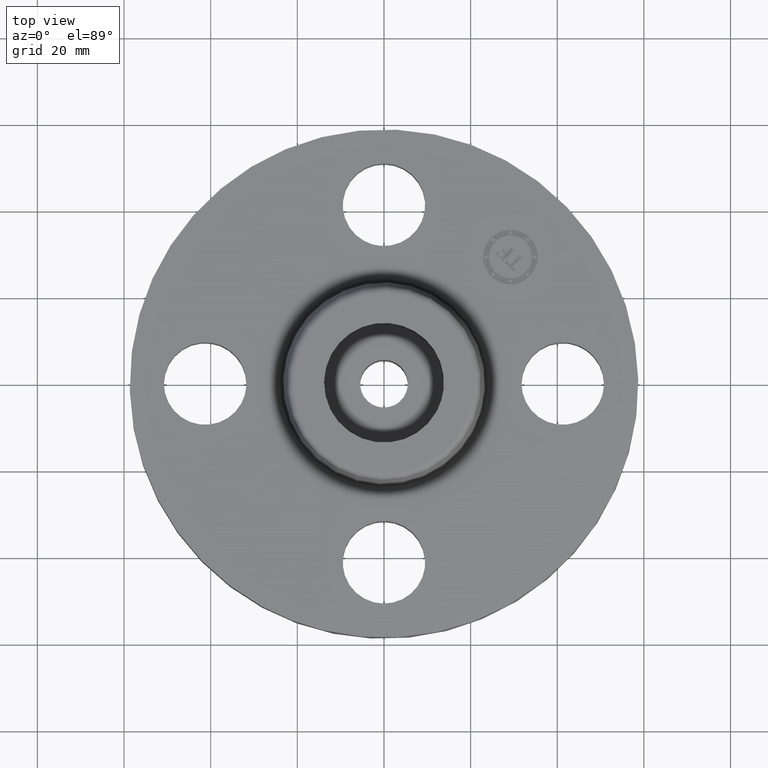
[diagram: clean part render]
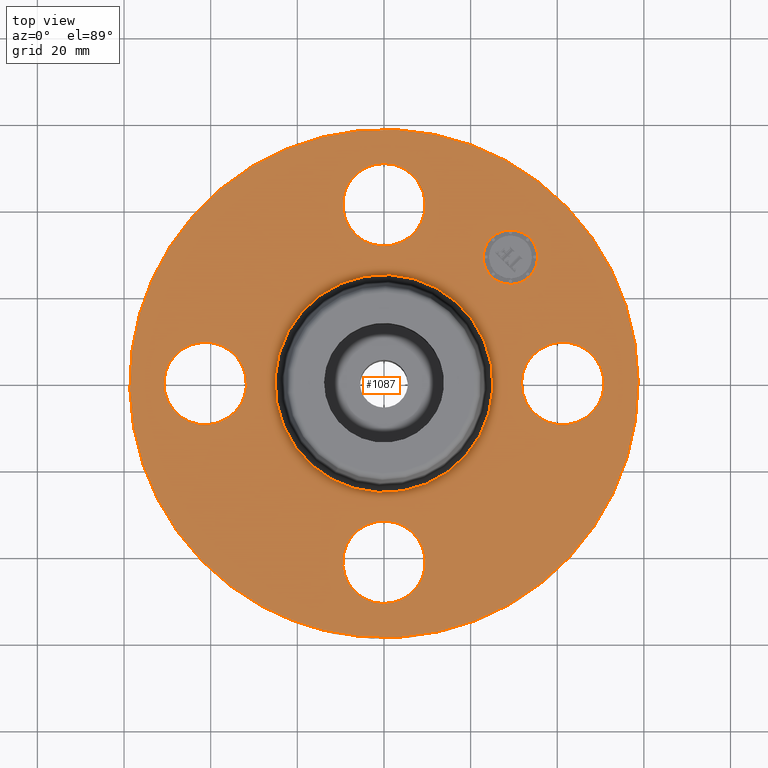
[diagram: same view with one face highlighted and labeled with its STEP entity id]
A machine part, top view. The second image highlights one B-rep face of the part: STEP entity #1087.
In plain terms, the highlighted planar face has unit normal (0, 0, -1).
Its self-contained STEP definition (entity closure, byte-faithful):
#615=AXIS2_PLACEMENT_3D('Circle Axis2P3D',#613,#614,$) ;
#653=AXIS2_PLACEMENT_3D('Circle Axis2P3D',#651,#652,$) ;
#684=AXIS2_PLACEMENT_3D('Circle Axis2P3D',#682,#683,$) ;
#765=AXIS2_PLACEMENT_3D('Circle Axis2P3D',#763,#764,$) ;
#839=AXIS2_PLACEMENT_3D('Circle Axis2P3D',#837,#838,$) ;
#913=AXIS2_PLACEMENT_3D('Circle Axis2P3D',#911,#912,$) ;
#987=AXIS2_PLACEMENT_3D('Circle Axis2P3D',#985,#986,$) ;
#1043=AXIS2_PLACEMENT_3D('Plane Axis2P3D',#1040,#1041,#1042) ;
#1071=AXIS2_PLACEMENT_3D('Circle Axis2P3D',#1069,#1070,$) ;
#1080=AXIS2_PLACEMENT_3D('Circle Axis2P3D',#1078,#1079,$) ;
#613=CARTESIAN_POINT('Axis2P3D Location',(0.,0.,0.620000000003)) ;
#617=CARTESIAN_POINT('Vertex',(0.474797153847,0.869110360421,0.620000000003)) ;
#619=CARTESIAN_POINT('Vertex',(-0.474797153847,-0.869110360421,0.620000000003)) ;
#651=CARTESIAN_POINT('Axis2P3D Location',(0.,0.,0.620000000003)) ;
#679=CARTESIAN_POINT('Vertex',(-1.10747299418,-2.02721571798,0.619999999973)) ;
#682=CARTESIAN_POINT('Axis2P3D Location',(0.,0.,0.619999999973)) ;
#686=CARTESIAN_POINT('Vertex',(1.10747299418,2.02721571798,0.619999999973)) ;
#714=CARTESIAN_POINT('Control Point',(1.10747299418,2.02721571797,0.619999999973)) ;
#715=CARTESIAN_POINT('Control Point',(1.42590729452,1.85325426685,0.619999999975)) ;
#716=CARTESIAN_POINT('Control Point',(1.71018434381,1.61676838705,0.619999999976)) ;
#717=CARTESIAN_POINT('Control Point',(1.94387991118,1.32665044307,0.619999999978)) ;
#718=CARTESIAN_POINT('Control Point',(2.28492391662,0.67041494059,0.619999999981)) ;
#719=CARTESIAN_POINT('Control Point',(2.35251083668,-0.066055056493,0.619999999983)) ;
#720=CARTESIAN_POINT('Control Point',(2.31261419157,-0.436447142444,0.619999999985)) ;
#721=CARTESIAN_POINT('Control Point',(2.08974014664,-1.14163024524,0.619999999988)) ;
#722=CARTESIAN_POINT('Control Point',(1.61676838706,-1.71018434381,0.619999999991)) ;
#723=CARTESIAN_POINT('Control Point',(1.32665044308,-1.94387991118,0.619999999992)) ;
#724=CARTESIAN_POINT('Control Point',(0.670414940591,-2.28492391662,0.619999999995)) ;
#725=CARTESIAN_POINT('Control Point',(-0.0660550564923,-2.35251083668,0.619999999998)) ;
#726=CARTESIAN_POINT('Control Point',(-0.436447142444,-2.31261419157,0.619999999999)) ;
#727=CARTESIAN_POINT('Control Point',(-0.78903869384,-2.2011771691,0.620000000001)) ;
#728=CARTESIAN_POINT('Control Point',(-1.10747299418,-2.02721571798,0.620000000002)) ;
#753=CARTESIAN_POINT('Vertex',(1.95409346071,-0.179784576986,0.620000000002)) ;
#760=CARTESIAN_POINT('Vertex',(1.2959065393,0.179784576977,0.619999999987)) ;
#763=CARTESIAN_POINT('Axis2P3D Location',(1.62500000001,0.,0.619999999987)) ;
#788=CARTESIAN_POINT('Control Point',(1.2959065393,0.179784576977,0.620000000002)) ;
#789=CARTESIAN_POINT('Control Point',(1.32414703461,0.231478456903,0.620000000001)) ;
#790=CARTESIAN_POINT('Control Point',(1.36253759951,0.27762732854,0.620000000001)) ;
#791=CARTESIAN_POINT('Control Point',(1.40963466834,0.315564920645,0.62)) ;
#792=CARTESIAN_POINT('Control Point',(1.51616640576,0.370929207243,0.619999999998)) ;
#793=CARTESIAN_POINT('Control Point',(1.63572322347,0.38190110985,0.619999999997)) ;
#794=CARTESIAN_POINT('Control Point',(1.69585180885,0.375424381748,0.619999999996)) ;
#795=CARTESIAN_POINT('Control Point',(1.81032958528,0.339243530298,0.619999999995)) ;
#796=CARTESIAN_POINT('Control Point',(1.90262732855,0.262462400496,0.619999999993)) ;
#797=CARTESIAN_POINT('Control Point',(1.94056492066,0.215365331668,0.619999999992)) ;
#798=CARTESIAN_POINT('Control Point',(1.99592920725,0.108833594252,0.619999999991)) ;
#799=CARTESIAN_POINT('Control Point',(2.00690110986,-0.0107232234562,0.61999999999)) ;
#800=CARTESIAN_POINT('Control Point',(2.00042438176,-0.0708518088378,0.619999999989)) ;
#801=CARTESIAN_POINT('Control Point',(1.98233395603,-0.128090697051,0.619999999988)) ;
#802=CARTESIAN_POINT('Control Point',(1.95409346072,-0.179784576977,0.619999999987)) ;
#827=CARTESIAN_POINT('Vertex',(0.179784576973,-1.29590653933,0.620000000002)) ;
#834=CARTESIAN_POINT('Vertex',(-0.179784576977,-1.95409346072,0.619999999987)) ;
#837=CARTESIAN_POINT('Axis2P3D Location',(-1.8023868212E-016,-1.62500000001,0.619999999987)) ;
#862=CARTESIAN_POINT('Control Point',(-0.179784576977,-1.95409346072,0.620000000002)) ;
#863=CARTESIAN_POINT('Control Point',(-0.231478456903,-1.92585296541,0.620000000001)) ;
#864=CARTESIAN_POINT('Control Point',(-0.27762732854,-1.88746240051,0.620000000001)) ;
#865=CARTESIAN_POINT('Control Point',(-0.315564920645,-1.84036533168,0.62)) ;
#866=CARTESIAN_POINT('Control Point',(-0.370929207243,-1.73383359426,0.619999999998)) ;
#867=CARTESIAN_POINT('Control Point',(-0.38190110985,-1.61427677655,0.619999999997)) ;
#868=CARTESIAN_POINT('Control Point',(-0.375424381748,-1.55414819117,0.619999999996)) ;
#869=CARTESIAN_POINT('Control Point',(-0.339243530298,-1.43967041474,0.619999999995)) ;
#870=CARTESIAN_POINT('Control Point',(-0.262462400496,-1.34737267147,0.619999999993)) ;
#871=CARTESIAN_POINT('Control Point',(-0.215365331668,-1.30943507936,0.619999999992)) ;
#872=CARTESIAN_POINT('Control Point',(-0.108833594252,-1.25407079277,0.619999999991)) ;
#873=CARTESIAN_POINT('Control Point',(0.0107232234562,-1.24309889016,0.61999999999)) ;
#874=CARTESIAN_POINT('Control Point',(0.0708518088378,-1.24957561826,0.619999999989)) ;
#875=CARTESIAN_POINT('Control Point',(0.128090697051,-1.26766604399,0.619999999988)) ;
#876=CARTESIAN_POINT('Control Point',(0.179784576977,-1.2959065393,0.619999999987)) ;
#901=CARTESIAN_POINT('Vertex',(-1.29590653932,-0.179784576986,0.620000000002)) ;
#908=CARTESIAN_POINT('Vertex',(-1.95409346072,0.179784576978,0.619999999987)) ;
#911=CARTESIAN_POINT('Axis2P3D Location',(-1.62500000001,-1.99005104862E-016,0.619999999987)) ;
#936=CARTESIAN_POINT('Control Point',(-1.95409346072,0.179784576978,0.620000000002)) ;
#937=CARTESIAN_POINT('Control Point',(-1.92585296541,0.231478456903,0.620000000001)) ;
#938=CARTESIAN_POINT('Control Point',(-1.88746240051,0.277627328541,0.620000000001)) ;
#939=CARTESIAN_POINT('Control Point',(-1.84036533168,0.315564920646,0.62)) ;
#940=CARTESIAN_POINT('Control Point',(-1.73383359426,0.370929207244,0.619999999998)) ;
#941=CARTESIAN_POINT('Control Point',(-1.61427677655,0.381901109851,0.619999999997)) ;
#942=CARTESIAN_POINT('Control Point',(-1.55414819117,0.375424381749,0.619999999996)) ;
#943=CARTESIAN_POINT('Control Point',(-1.43967041474,0.339243530299,0.619999999995)) ;
#944=CARTESIAN_POINT('Control Point',(-1.34737267147,0.262462400496,0.619999999993)) ;
#945=CARTESIAN_POINT('Control Point',(-1.30943507936,0.215365331668,0.619999999992)) ;
#946=CARTESIAN_POINT('Control Point',(-1.25407079277,0.108833594252,0.619999999991)) ;
#947=CARTESIAN_POINT('Control Point',(-1.24309889016,-0.0107232234563,0.61999999999)) ;
#948=CARTESIAN_POINT('Control Point',(-1.24957561826,-0.070851808838,0.619999999989)) ;
#949=CARTESIAN_POINT('Control Point',(-1.26766604399,-0.128090697052,0.619999999988)) ;
#950=CARTESIAN_POINT('Control Point',(-1.2959065393,-0.179784576977,0.619999999987)) ;
#975=CARTESIAN_POINT('Vertex',(-0.179784576973,1.2959065393,0.620000000002)) ;
#982=CARTESIAN_POINT('Vertex',(0.179784576977,1.95409346072,0.619999999987)) ;
#985=CARTESIAN_POINT('Axis2P3D Location',(-2.98507657293E-016,1.62500000001,0.619999999987)) ;
#1010=CARTESIAN_POINT('Control Point',(0.179784576977,1.95409346072,0.620000000002)) ;
#1011=CARTESIAN_POINT('Control Point',(0.231478456903,1.92585296541,0.620000000001)) ;
#1012=CARTESIAN_POINT('Control Point',(0.27762732854,1.88746240051,0.620000000001)) ;
#1013=CARTESIAN_POINT('Control Point',(0.315564920645,1.84036533168,0.62)) ;
#1014=CARTESIAN_POINT('Control Point',(0.370929207243,1.73383359426,0.619999999998)) ;
#1015=CARTESIAN_POINT('Control Point',(0.38190110985,1.61427677655,0.619999999997)) ;
#1016=CARTESIAN_POINT('Control Point',(0.375424381748,1.55414819117,0.619999999996)) ;
#1017=CARTESIAN_POINT('Control Point',(0.339243530298,1.43967041474,0.619999999995)) ;
#1018=CARTESIAN_POINT('Control Point',(0.262462400496,1.34737267147,0.619999999993)) ;
#1019=CARTESIAN_POINT('Control Point',(0.215365331668,1.30943507936,0.619999999992)) ;
#1020=CARTESIAN_POINT('Control Point',(0.108833594252,1.25407079277,0.619999999991)) ;
#1021=CARTESIAN_POINT('Control Point',(-0.0107232234562,1.24309889016,0.61999999999)) ;
#1022=CARTESIAN_POINT('Control Point',(-0.0708518088378,1.24957561826,0.619999999989)) ;
#1023=CARTESIAN_POINT('Control Point',(-0.128090697051,1.26766604399,0.619999999988)) ;
#1024=CARTESIAN_POINT('Control Point',(-0.179784576977,1.2959065393,0.619999999987)) ;
#1040=CARTESIAN_POINT('Axis2P3D Location',(0.,2.31000000001,0.620000000002)) ;
#1069=CARTESIAN_POINT('Axis2P3D Location',(1.14904851942,1.14904851941,0.620000000002)) ;
#1073=CARTESIAN_POINT('Vertex',(0.974039591072,1.32405744776,0.620000000002)) ;
#1075=CARTESIAN_POINT('Vertex',(1.32405744778,0.974039591059,0.620000000002)) ;
#1078=CARTESIAN_POINT('Axis2P3D Location',(1.14904851942,1.14904851941,0.620000000002)) ;
#614=DIRECTION('Axis2P3D Direction',(-0.,0.,-0.0393700787402)) ;
#652=DIRECTION('Axis2P3D Direction',(-0.,0.,-0.0393700787402)) ;
#683=DIRECTION('Axis2P3D Direction',(0.,0.,-0.0393700787402)) ;
#764=DIRECTION('Axis2P3D Direction',(0.,-0.,-0.0393700787402)) ;
#838=DIRECTION('Axis2P3D Direction',(0.,0.,-0.0393700787402)) ;
#912=DIRECTION('Axis2P3D Direction',(0.,-0.,-0.0393700787402)) ;
#986=DIRECTION('Axis2P3D Direction',(-0.,0.,-0.0393700787402)) ;
#1041=DIRECTION('Axis2P3D Direction',(0.,0.,-0.0393700787402)) ;
#1042=DIRECTION('Axis2P3D XDirection',(0.0393700787402,0.,0.)) ;
#1070=DIRECTION('Axis2P3D Direction',(0.,0.,-0.0393700787402)) ;
#1079=DIRECTION('Axis2P3D Direction',(0.,0.,-0.0393700787402)) ;
#1046=ORIENTED_EDGE('',*,*,#729,.F.) ;
#1047=ORIENTED_EDGE('',*,*,#688,.F.) ;
#1050=ORIENTED_EDGE('',*,*,#803,.T.) ;
#1051=ORIENTED_EDGE('',*,*,#767,.T.) ;
#1054=ORIENTED_EDGE('',*,*,#655,.T.) ;
#1055=ORIENTED_EDGE('',*,*,#621,.T.) ;
#1058=ORIENTED_EDGE('',*,*,#877,.T.) ;
#1059=ORIENTED_EDGE('',*,*,#841,.T.) ;
#1062=ORIENTED_EDGE('',*,*,#951,.T.) ;
#1063=ORIENTED_EDGE('',*,*,#915,.T.) ;
#1066=ORIENTED_EDGE('',*,*,#1025,.T.) ;
#1067=ORIENTED_EDGE('',*,*,#989,.T.) ;
#1084=ORIENTED_EDGE('',*,*,#1077,.T.) ;
#1085=ORIENTED_EDGE('',*,*,#1082,.T.) ;
#1052=FACE_BOUND('',#1049,.T.) ;
#1056=FACE_BOUND('',#1053,.T.) ;
#1060=FACE_BOUND('',#1057,.T.) ;
#1064=FACE_BOUND('',#1061,.T.) ;
#1068=FACE_BOUND('',#1065,.T.) ;
#1086=FACE_BOUND('',#1083,.T.) ;
#1087=ADVANCED_FACE('PartBody',(#1048,#1052,#1056,#1060,#1064,#1068,#1086),#1044,.F.) ;
#713=B_SPLINE_CURVE_WITH_KNOTS('',5,(#714,#715,#716,#717,#718,#719,#720,#721,#722,#723,#724,#725,#726,#727,#728),.UNSPECIFIED.,.F.,.U.,(6,3,3,3,6),(-92.1649036787,-46.0824518394,-7.1054273576E-015,46.0824518394,92.1649036787),.UNSPECIFIED.) ;
#787=B_SPLINE_CURVE_WITH_KNOTS('',5,(#788,#789,#790,#791,#792,#793,#794,#795,#796,#797,#798,#799,#800,#801,#802),.UNSPECIFIED.,.F.,.U.,(6,3,3,3,6),(-14.9618350128,-7.48091750638,0.,7.48091750638,14.9618350128),.UNSPECIFIED.) ;
#861=B_SPLINE_CURVE_WITH_KNOTS('',5,(#862,#863,#864,#865,#866,#867,#868,#869,#870,#871,#872,#873,#874,#875,#876),.UNSPECIFIED.,.F.,.U.,(6,3,3,3,6),(-14.9618350128,-7.48091750638,0.,7.48091750638,14.9618350128),.UNSPECIFIED.) ;
#935=B_SPLINE_CURVE_WITH_KNOTS('',5,(#936,#937,#938,#939,#940,#941,#942,#943,#944,#945,#946,#947,#948,#949,#950),.UNSPECIFIED.,.F.,.U.,(6,3,3,3,6),(-14.9618350128,-7.4809175064,0.,7.4809175064,14.9618350128),.UNSPECIFIED.) ;
#1009=B_SPLINE_CURVE_WITH_KNOTS('',5,(#1010,#1011,#1012,#1013,#1014,#1015,#1016,#1017,#1018,#1019,#1020,#1021,#1022,#1023,#1024),.UNSPECIFIED.,.F.,.U.,(6,3,3,3,6),(-14.9618350128,-7.48091750638,0.,7.48091750638,14.9618350128),.UNSPECIFIED.) ;
#616=CIRCLE('generated circle',#615,0.990345977875) ;
#654=CIRCLE('generated circle',#653,0.990345977875) ;
#685=CIRCLE('generated circle',#684,2.31000000001) ;
#766=CIRCLE('generated circle',#765,0.375000000001) ;
#840=CIRCLE('generated circle',#839,0.375000000001) ;
#914=CIRCLE('generated circle',#913,0.375000000002) ;
#988=CIRCLE('generated circle',#987,0.375000000001) ;
#1072=CIRCLE('generated circle',#1071,0.247500000012) ;
#1081=CIRCLE('generated circle',#1080,0.247500000012) ;
#621=EDGE_CURVE('',#618,#620,#616,.T.) ;
#655=EDGE_CURVE('',#620,#618,#654,.T.) ;
#688=EDGE_CURVE('',#680,#687,#685,.T.) ;
#729=EDGE_CURVE('',#687,#680,#713,.T.) ;
#767=EDGE_CURVE('',#754,#761,#766,.T.) ;
#803=EDGE_CURVE('',#761,#754,#787,.T.) ;
#841=EDGE_CURVE('',#828,#835,#840,.T.) ;
#877=EDGE_CURVE('',#835,#828,#861,.T.) ;
#915=EDGE_CURVE('',#902,#909,#914,.T.) ;
#951=EDGE_CURVE('',#909,#902,#935,.T.) ;
#989=EDGE_CURVE('',#976,#983,#988,.T.) ;
#1025=EDGE_CURVE('',#983,#976,#1009,.T.) ;
#1077=EDGE_CURVE('',#1074,#1076,#1072,.T.) ;
#1082=EDGE_CURVE('',#1076,#1074,#1081,.T.) ;
#1045=EDGE_LOOP('',(#1046,#1047)) ;
#1049=EDGE_LOOP('',(#1050,#1051)) ;
#1053=EDGE_LOOP('',(#1054,#1055)) ;
#1057=EDGE_LOOP('',(#1058,#1059)) ;
#1061=EDGE_LOOP('',(#1062,#1063)) ;
#1065=EDGE_LOOP('',(#1066,#1067)) ;
#1083=EDGE_LOOP('',(#1084,#1085)) ;
#1048=FACE_OUTER_BOUND('',#1045,.T.) ;
#1044=PLANE('',#1043) ;
#618=VERTEX_POINT('',#617) ;
#620=VERTEX_POINT('',#619) ;
#680=VERTEX_POINT('',#679) ;
#687=VERTEX_POINT('',#686) ;
#754=VERTEX_POINT('',#753) ;
#761=VERTEX_POINT('',#760) ;
#828=VERTEX_POINT('',#827) ;
#835=VERTEX_POINT('',#834) ;
#902=VERTEX_POINT('',#901) ;
#909=VERTEX_POINT('',#908) ;
#976=VERTEX_POINT('',#975) ;
#983=VERTEX_POINT('',#982) ;
#1074=VERTEX_POINT('',#1073) ;
#1076=VERTEX_POINT('',#1075) ;